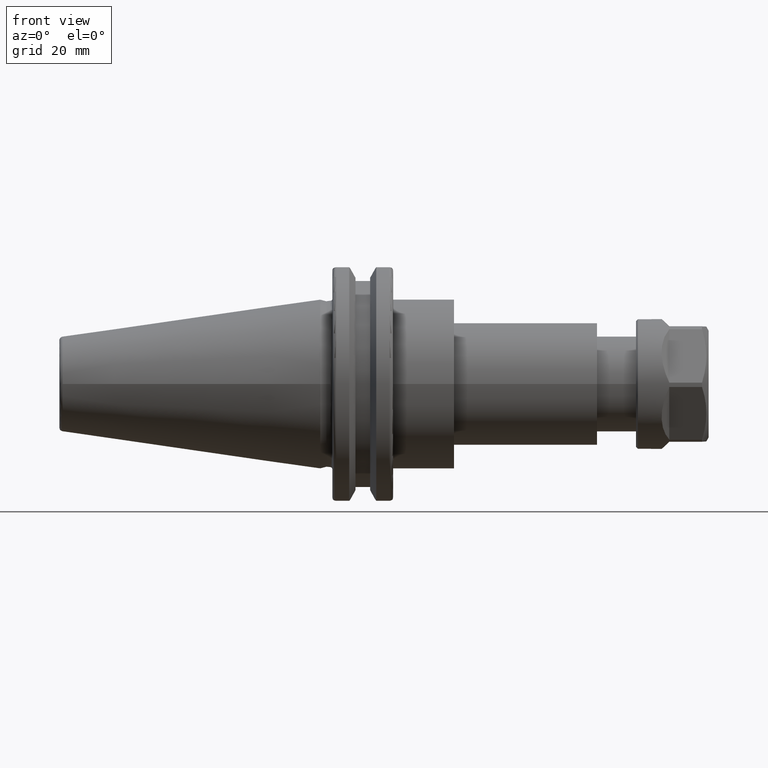
[diagram: clean part render]
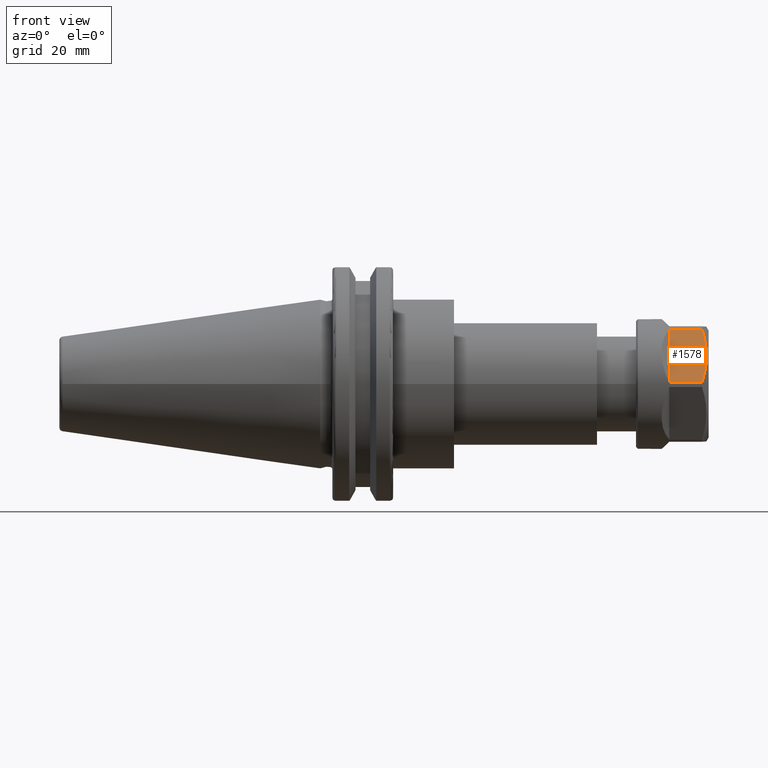
[diagram: same view with one face highlighted and labeled with its STEP entity id]
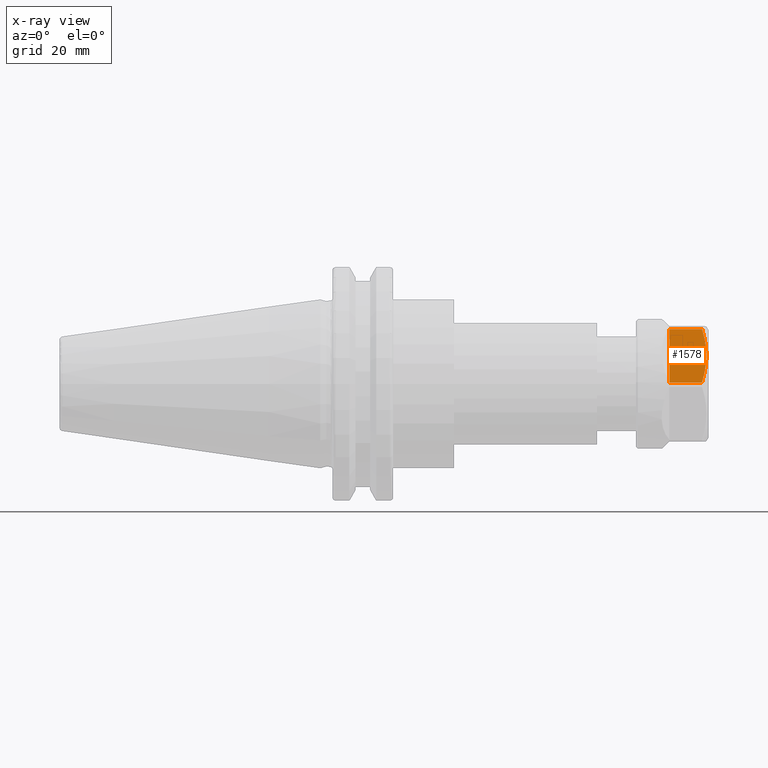
[diagram: x-ray of the same camera — body ghosted, the highlighted face saturated]
A machine part, front view. The second image highlights one B-rep face of the part: STEP entity #1578.
The next image is the same camera in x-ray: the body ghosted, the highlighted face saturated — about 0% of this face is hidden behind the body in this view.
In plain terms, the highlighted planar face has unit normal (0, 0.8721, -0.4893).
Its self-contained STEP definition (entity closure, byte-faithful):
#86=(
BOUNDED_CURVE()
B_SPLINE_CURVE(2,(#2834,#2835,#2836),.UNSPECIFIED.,.F.,.F.)
B_SPLINE_CURVE_WITH_KNOTS((3,3),(1.89977904823324,4.47851568551576),
 .UNSPECIFIED.)
CURVE()
GEOMETRIC_REPRESENTATION_ITEM()
RATIONAL_B_SPLINE_CURVE((1.51788044142269,1.72026450027904,1.51788044142269))
REPRESENTATION_ITEM('')
);
#167=PLANE('',#1813);
#265=FACE_OUTER_BOUND('',#367,.T.);
#367=EDGE_LOOP('',(#1418,#1419,#1420,#1421));
#466=LINE('',#2776,#566);
#478=LINE('',#2822,#578);
#483=LINE('',#2859,#583);
#566=VECTOR('',#2169,8.567949192431);
#578=VECTOR('',#2205,8.567949192431);
#583=VECTOR('',#2228,16.);
#774=VERTEX_POINT('',#2772);
#775=VERTEX_POINT('',#2773);
#776=VERTEX_POINT('',#2775);
#798=VERTEX_POINT('',#2820);
#976=EDGE_CURVE('',#774,#776,#466,.T.);
#1000=EDGE_CURVE('',#775,#798,#478,.T.);
#1004=EDGE_CURVE('',#798,#776,#86,.T.);
#1013=EDGE_CURVE('',#775,#774,#483,.T.);
#1418=ORIENTED_EDGE('',*,*,#1013,.F.);
#1419=ORIENTED_EDGE('',*,*,#1000,.T.);
#1420=ORIENTED_EDGE('',*,*,#1004,.T.);
#1421=ORIENTED_EDGE('',*,*,#976,.F.);
#1578=ADVANCED_FACE('',(#265),#167,.F.);
#1813=AXIS2_PLACEMENT_3D('',#2858,#2226,#2227);
#2169=DIRECTION('',(1.,0.,0.));
#2205=DIRECTION('',(1.,0.,0.));
#2226=DIRECTION('center_axis',(0.,0.,1.));
#2227=DIRECTION('ref_axis',(0.,-1.,0.));
#2228=DIRECTION('',(0.,-1.,0.));
#2772=CARTESIAN_POINT('',(-0.8,-8.,-15.));
#2773=CARTESIAN_POINT('',(-0.8,8.,-15.));
#2775=CARTESIAN_POINT('',(7.767949192431,-8.,-15.));
#2776=CARTESIAN_POINT('',(-0.8,-8.,-15.));
#2820=CARTESIAN_POINT('',(7.767949192431,8.,-15.));
#2822=CARTESIAN_POINT('',(-0.8,8.,-15.));
#2834=CARTESIAN_POINT('Ctrl Pts',(7.76794919242979,7.99999999999999,-15.));
#2835=CARTESIAN_POINT('Ctrl Pts',(9.94150314702602,8.88178419700125E-15,
-15.));
#2836=CARTESIAN_POINT('Ctrl Pts',(7.7679491924298,-7.99999999999997,-15.));
#2858=CARTESIAN_POINT('Origin',(9.5,10.,-15.));
#2859=CARTESIAN_POINT('',(-0.8,8.,-15.));